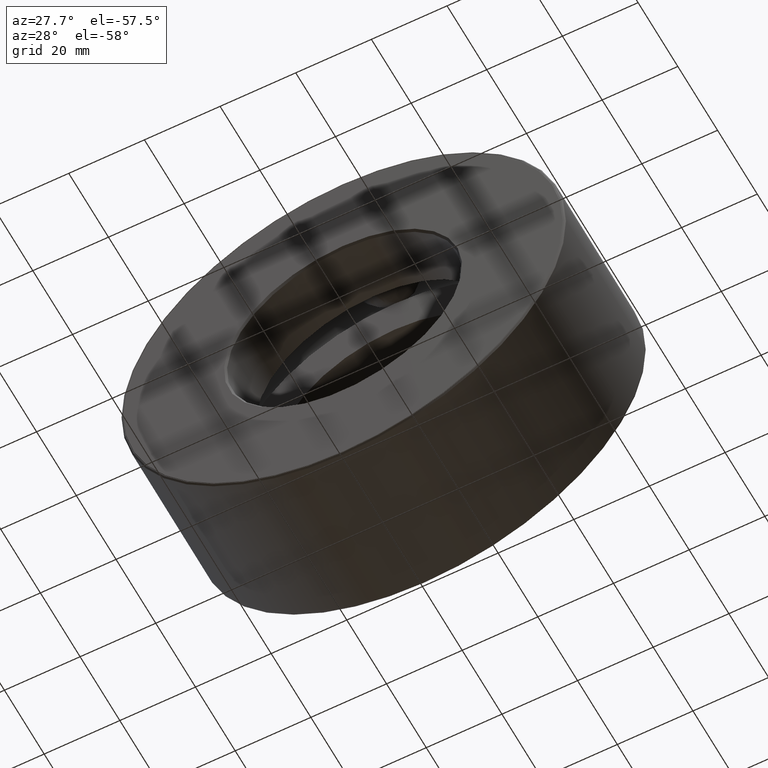
[diagram: clean part render]
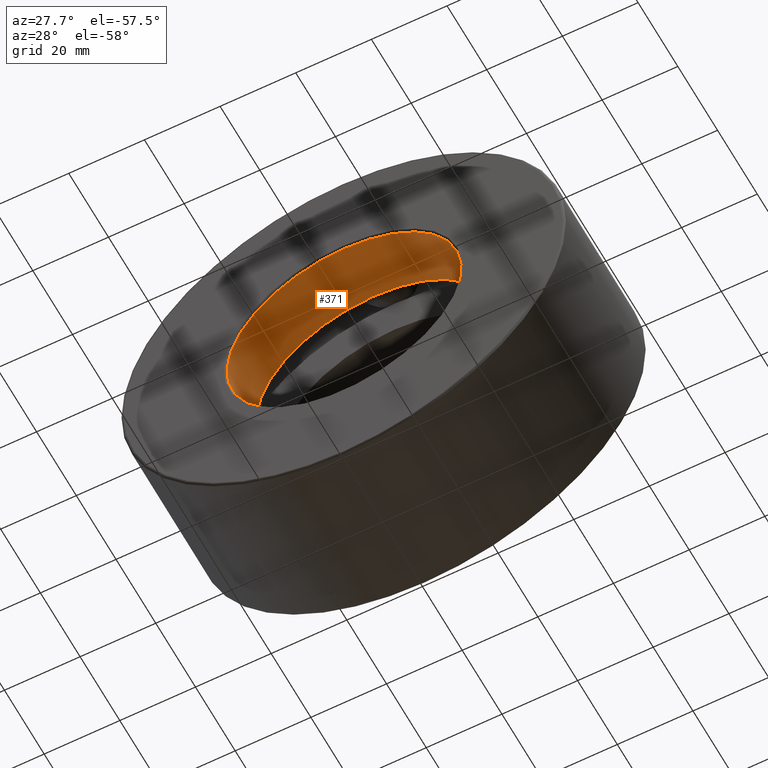
[diagram: same view with one face highlighted and labeled with its STEP entity id]
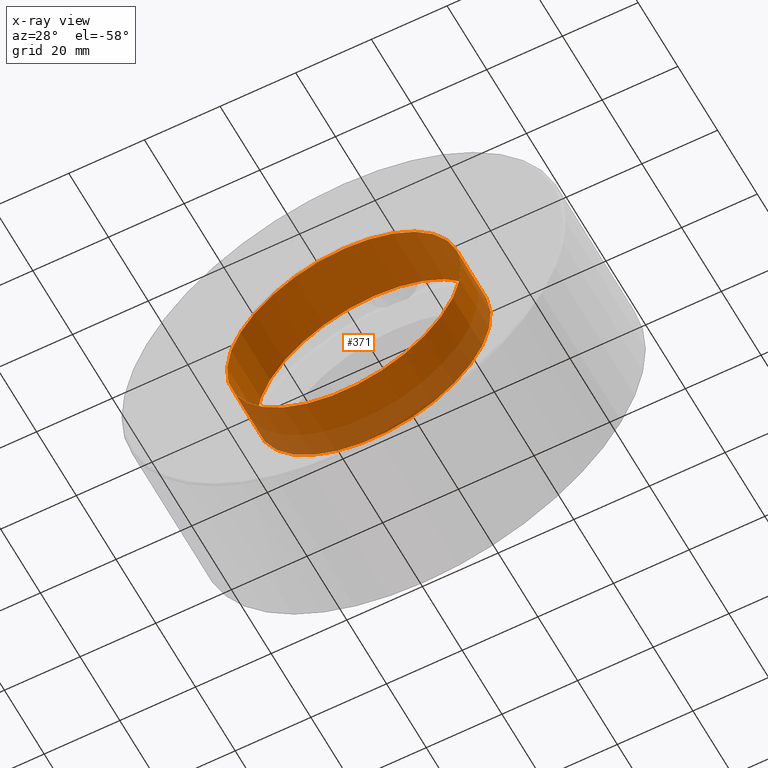
[diagram: x-ray of the same camera — body ghosted, the highlighted face saturated]
A machine part, auxiliary view. The second image highlights one B-rep face of the part: STEP entity #371.
The next image is the same camera in x-ray: the body ghosted, the highlighted face saturated — about 21% of this face is hidden behind the body in this view.
In plain terms, the highlighted cylindrical surface (bore or boss wall) has radius 30.9562 mm, axis along (-0, 1, -0).
Its self-contained STEP definition (entity closure, byte-faithful):
#6 = DIRECTION ( 'NONE',  ( -0.0000000000000000000, 1.000000000000000000, -0.0000000000000000000 ) ) ;
#32 = DIRECTION ( 'NONE',  ( -0.0000000000000000000, 1.000000000000000000, -0.0000000000000000000 ) ) ;
#38 = CIRCLE ( 'NONE', #85, 1.218750000000000000 ) ;
#43 = DIRECTION ( 'NONE',  ( 0.0000000000000000000, 0.0000000000000000000, 1.000000000000000000 ) ) ;
#85 = AXIS2_PLACEMENT_3D ( 'NONE', #590, #32, #489 ) ;
#99 = DIRECTION ( 'NONE',  ( -0.0000000000000000000, 1.000000000000000000, -0.0000000000000000000 ) ) ;
#104 = CARTESIAN_POINT ( 'NONE',  ( 0.0000000000000000000, 0.6062500000000002900, 1.218750000000000000 ) ) ;
#132 = FACE_OUTER_BOUND ( 'NONE', #328, .T. ) ;
#190 = ORIENTED_EDGE ( 'NONE', *, *, #488, .T. ) ;
#219 = VERTEX_POINT ( 'NONE', #416 ) ;
#240 = VERTEX_POINT ( 'NONE', #104 ) ;
#254 = AXIS2_PLACEMENT_3D ( 'NONE', #370, #6, #322 ) ;
#322 = DIRECTION ( 'NONE',  ( 0.0000000000000000000, 0.0000000000000000000, 1.000000000000000000 ) ) ;
#328 = EDGE_LOOP ( 'NONE', ( #596 ) ) ;
#348 = EDGE_CURVE ( 'NONE', #219, #219, #494, .T. ) ;
#370 = CARTESIAN_POINT ( 'NONE',  ( 0.0000000000000000000, 0.0000000000000000000, 0.0000000000000000000 ) ) ;
#371 = ADVANCED_FACE ( 'NONE', ( #132, #585 ), #434, .F. ) ;
#416 = CARTESIAN_POINT ( 'NONE',  ( 0.0000000000000000000, 0.02000000000000060800, 1.218749999999999800 ) ) ;
#434 = CYLINDRICAL_SURFACE ( 'NONE', #254, 1.218750000000000000 ) ;
#435 = EDGE_LOOP ( 'NONE', ( #190 ) ) ;
#465 = AXIS2_PLACEMENT_3D ( 'NONE', #582, #99, #43 ) ;
#488 = EDGE_CURVE ( 'NONE', #240, #240, #38, .T. ) ;
#489 = DIRECTION ( 'NONE',  ( 0.0000000000000000000, 0.0000000000000000000, 1.000000000000000000 ) ) ;
#494 = CIRCLE ( 'NONE', #465, 1.218749999999999800 ) ;
#582 = CARTESIAN_POINT ( 'NONE',  ( 0.0000000000000000000, 0.02000000000000060800, 0.0000000000000000000 ) ) ;
#585 = FACE_OUTER_BOUND ( 'NONE', #435, .T. ) ;
#590 = CARTESIAN_POINT ( 'NONE',  ( 0.0000000000000000000, 0.6062500000000002900, 0.0000000000000000000 ) ) ;
#596 = ORIENTED_EDGE ( 'NONE', *, *, #348, .F. ) ;